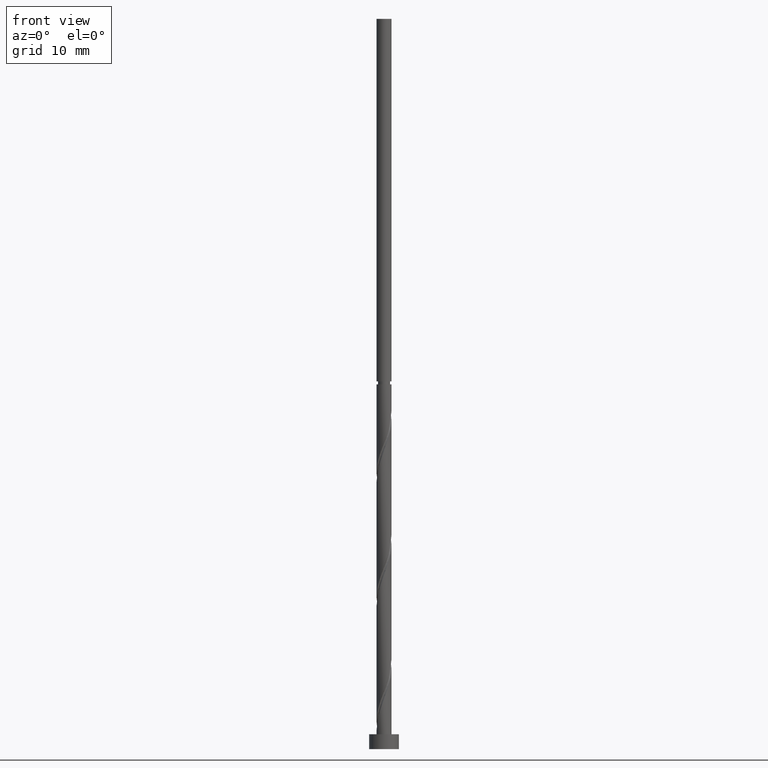
[diagram: clean part render]
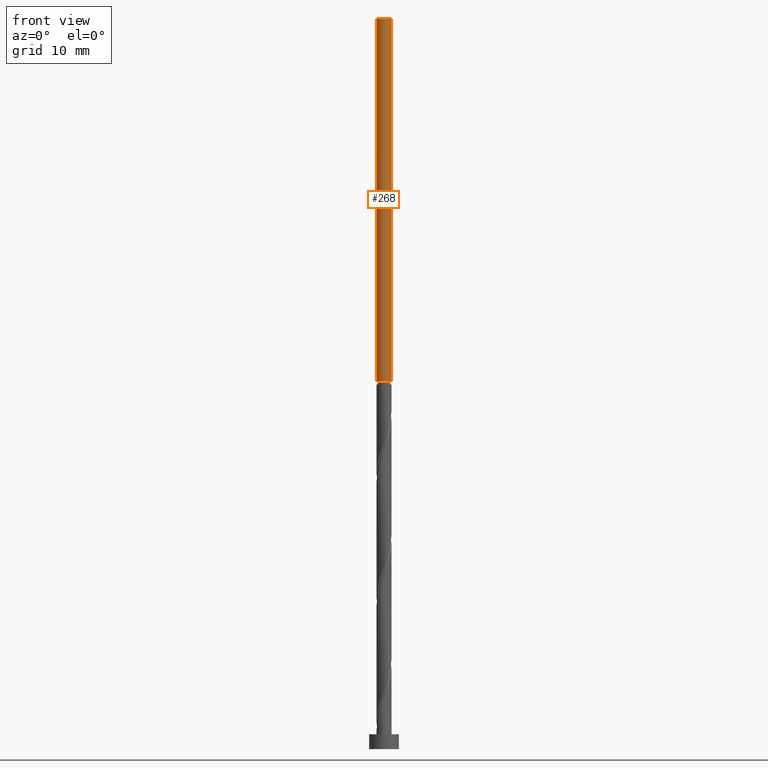
[diagram: same view with one face highlighted and labeled with its STEP entity id]
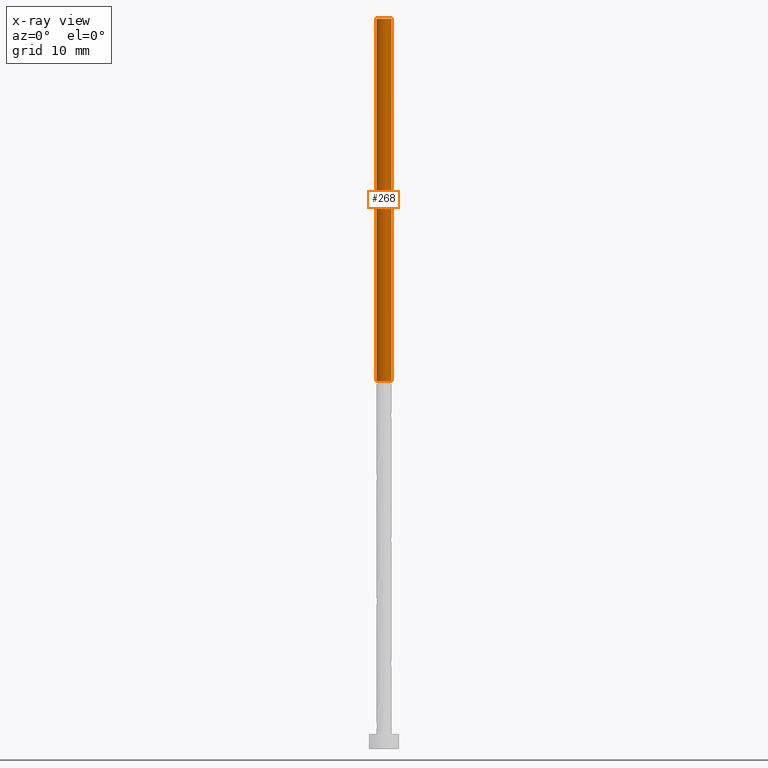
[diagram: x-ray of the same camera — body ghosted, the highlighted face saturated]
A machine part, front view. The second image highlights one B-rep face of the part: STEP entity #268.
The next image is the same camera in x-ray: the body ghosted, the highlighted face saturated — about 0% of this face is hidden behind the body in this view.
In plain terms, the highlighted cylindrical surface (edge-blend (fillet) strip) has radius 1 mm, axis along (-0, -0, -1).
Its self-contained STEP definition (entity closure, byte-faithful):
#60 = DIRECTION ( 'NONE',  ( 0.000000000000000000, 0.000000000000000000, 1.000000000000000000 ) ) ;
#115 = CYLINDRICAL_SURFACE ( 'NONE', #602, 1.000000000000000000 ) ;
#134 = CARTESIAN_POINT ( 'NONE',  ( -1.000000000000000000, 0.000000000000000000, 98.00000000000000000 ) ) ;
#209 = ORIENTED_EDGE ( 'NONE', *, *, #1242, .F. ) ;
#261 = VERTEX_POINT ( 'NONE', #524 ) ;
#268 = ADVANCED_FACE ( 'NONE', ( #1086 ), #115, .T. ) ;
#278 = ORIENTED_EDGE ( 'NONE', *, *, #714, .T. ) ;
#286 = CARTESIAN_POINT ( 'NONE',  ( 0.000000000000000000, 0.000000000000000000, 49.34464432268620016 ) ) ;
#309 = VECTOR ( 'NONE', #950, 1000.000000000000000 ) ;
#334 = CARTESIAN_POINT ( 'NONE',  ( -1.000000000000005773, 0.000000000000000000, 49.34464432268620016 ) ) ;
#337 = CARTESIAN_POINT ( 'NONE',  ( 0.000000000000000000, 0.000000000000000000, 98.00000000000000000 ) ) ;
#435 = ORIENTED_EDGE ( 'NONE', *, *, #1460, .F. ) ;
#450 = ORIENTED_EDGE ( 'NONE', *, *, #1253, .F. ) ;
#524 = CARTESIAN_POINT ( 'NONE',  ( 1.000000000000000000, 1.224646799147353207E-16, 98.00000000000000000 ) ) ;
#602 = AXIS2_PLACEMENT_3D ( 'NONE', #1650, #1618, #1517 ) ;
#624 = VERTEX_POINT ( 'NONE', #1033 ) ;
#667 = VERTEX_POINT ( 'NONE', #334 ) ;
#714 = EDGE_CURVE ( 'NONE', #1270, #667, #1089, .T. ) ;
#715 = CARTESIAN_POINT ( 'NONE',  ( -1.000000000000000000, 0.000000000000000000, 98.00000000000000000 ) ) ;
#839 = CIRCLE ( 'NONE', #1464, 1.000000000000000000 ) ;
#950 = DIRECTION ( 'NONE',  ( -0.000000000000000000, -0.000000000000000000, -1.000000000000000000 ) ) ;
#960 = VECTOR ( 'NONE', #1548, 1000.000000000000000 ) ;
#978 = DIRECTION ( 'NONE',  ( -0.000000000000000000, -0.000000000000000000, -1.000000000000000000 ) ) ;
#1033 = CARTESIAN_POINT ( 'NONE',  ( 1.000000000000005773, 1.224646799147360110E-16, 49.34464432268620016 ) ) ;
#1086 = FACE_OUTER_BOUND ( 'NONE', #1434, .T. ) ;
#1089 = LINE ( 'NONE', #134, #309 ) ;
#1242 = EDGE_CURVE ( 'NONE', #624, #667, #1284, .T. ) ;
#1253 = EDGE_CURVE ( 'NONE', #261, #624, #1417, .T. ) ;
#1270 = VERTEX_POINT ( 'NONE', #715 ) ;
#1284 = CIRCLE ( 'NONE', #1754, 1.000000000000005773 ) ;
#1393 = CARTESIAN_POINT ( 'NONE',  ( 1.000000000000000000, 1.224646799147353207E-16, 98.00000000000000000 ) ) ;
#1417 = LINE ( 'NONE', #1393, #960 ) ;
#1433 = DIRECTION ( 'NONE',  ( 1.000000000000000000, 0.000000000000000000, 0.000000000000000000 ) ) ;
#1434 = EDGE_LOOP ( 'NONE', ( #450, #435, #278, #209 ) ) ;
#1460 = EDGE_CURVE ( 'NONE', #1270, #261, #839, .T. ) ;
#1464 = AXIS2_PLACEMENT_3D ( 'NONE', #337, #60, #1433 ) ;
#1517 = DIRECTION ( 'NONE',  ( -1.000000000000000000, 0.000000000000000000, 0.000000000000000000 ) ) ;
#1548 = DIRECTION ( 'NONE',  ( -0.000000000000000000, -0.000000000000000000, -1.000000000000000000 ) ) ;
#1618 = DIRECTION ( 'NONE',  ( -0.000000000000000000, -0.000000000000000000, -1.000000000000000000 ) ) ;
#1650 = CARTESIAN_POINT ( 'NONE',  ( 0.000000000000000000, 0.000000000000000000, 98.00000000000000000 ) ) ;
#1708 = DIRECTION ( 'NONE',  ( -1.000000000000000000, 0.000000000000000000, 0.000000000000000000 ) ) ;
#1754 = AXIS2_PLACEMENT_3D ( 'NONE', #286, #978, #1708 ) ;